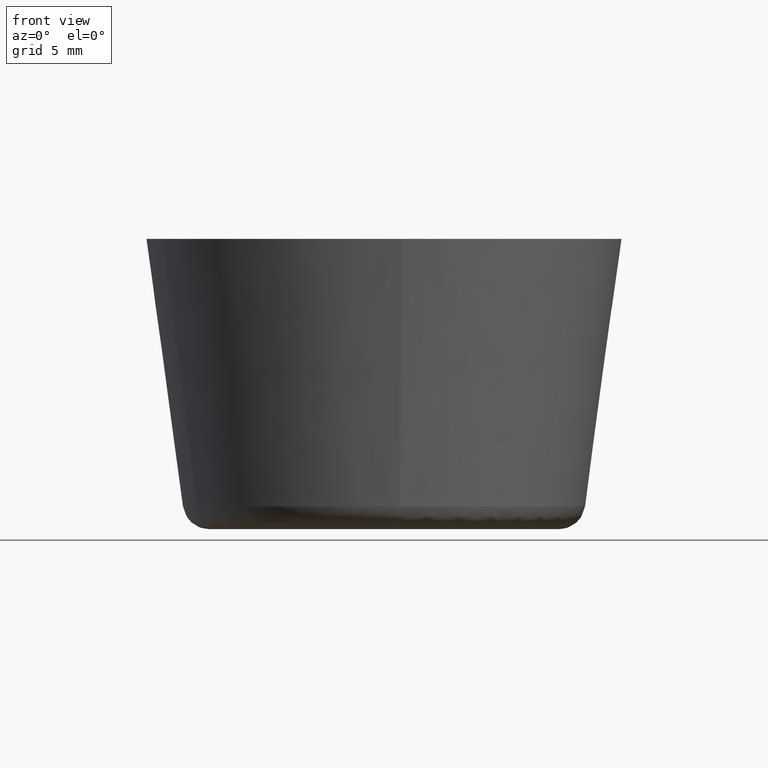
[diagram: clean part render]
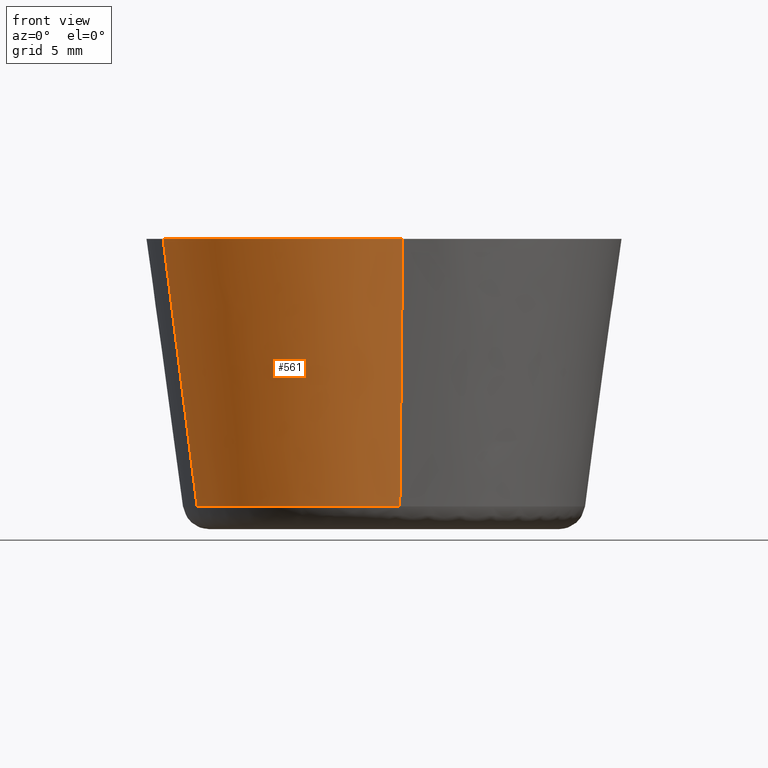
[diagram: same view with one face highlighted and labeled with its STEP entity id]
A machine part, front view. The second image highlights one B-rep face of the part: STEP entity #561.
In plain terms, the highlighted face is a freeform B-spline surface patch.
Its self-contained STEP definition (entity closure, byte-faithful):
#497=CARTESIAN_POINT('',(-14.103044386516341,-5.579892592433053,1.223017307398109));
#498=CARTESIAN_POINT('',(-9.980641361108283,-15.999167136405694,1.223017307398109));
#499=CARTESIAN_POINT('',(1.189971447496419,-15.120020842091551,1.223017307398109));
#500=CARTESIAN_POINT('',(-16.803422435196168,-6.648301586806173,22.519424567315038));
#501=CARTESIAN_POINT('',(-11.891682984791359,-19.062604969276439,22.519424567315042));
#502=CARTESIAN_POINT('',(1.417821029991340,-18.015124286323910,22.519424567315049));
#510=(BOUNDED_SURFACE()B_SPLINE_SURFACE(2,1,((#497,#500),(#498,#501),(#499,#502)),.UNSPECIFIED.,.F.,.F.,.U.)B_SPLINE_SURFACE_WITH_KNOTS((3,3),(2,2),(0.0,23.789321917577521),(0.0,21.493499053557841),.UNSPECIFIED.)GEOMETRIC_REPRESENTATION_ITEM()RATIONAL_B_SPLINE_SURFACE(((0.906274169979695,0.906274169979695),(0.765685424949238,0.765685424949238),(1.0,1.0)))REPRESENTATION_ITEM('')SURFACE());
#511=CARTESIAN_POINT('',(1.195385475668966,-15.188911103896380,1.729770238831320));
#512=VERTEX_POINT('',#511);
#513=CARTESIAN_POINT('',(-14.167302650920259,-5.605309753979007,1.729769007445406));
#514=VERTEX_POINT('',#513);
#515=CARTESIAN_POINT('',(1.195385475668966,-15.188911103896384,1.729770238831321));
#516=CARTESIAN_POINT('',(0.598615391157902,-15.235877629290734,1.729770206088202));
#517=CARTESIAN_POINT('',(-2.654968E-010,-15.235877634201231,1.729770171548069));
#518=CARTESIAN_POINT('',(-10.356957460946093,-15.235877719160307,1.729769573951176));
#519=CARTESIAN_POINT('',(-14.167302650920261,-5.605309753979007,1.729769007445405));
#527=(BOUNDED_CURVE()B_SPLINE_CURVE(2,(#515,#516,#517,#518,#519),.UNSPECIFIED.,.F.,.U.)B_SPLINE_CURVE_WITH_KNOTS((3,2,3),(0.736331387595906,0.750000000000000,0.937532614537402),.UNSPECIFIED.)CURVE()GEOMETRIC_REPRESENTATION_ITEM()RATIONAL_B_SPLINE_CURVE((0.969723537657323,0.983986224465006,1.0,0.780291875582551,0.890203263222006))REPRESENTATION_ITEM(''));
#528=EDGE_CURVE('',#512,#514,#527,.T.);
#529=ORIENTED_EDGE('',*,*,#528,.F.);
#530=CARTESIAN_POINT('',(1.412253363233382,-17.944512308442039,21.999996241646208));
#531=VERTEX_POINT('',#530);
#532=CARTESIAN_POINT('',(1.195385475668966,-15.188911103896380,1.729770238831320));
#533=CARTESIAN_POINT('',(1.412253363233382,-17.944512308442039,21.999996241646208));
#534=QUASI_UNIFORM_CURVE('',1,(#532,#533),.UNSPECIFIED.,.F.,.U.);
#535=EDGE_CURVE('',#512,#531,#534,.T.);
#536=ORIENTED_EDGE('',*,*,#535,.T.);
#537=CARTESIAN_POINT('',(-16.737561374398702,-6.622236711221320,21.999995889514299));
#538=VERTEX_POINT('',#537);
#539=CARTESIAN_POINT('',(1.412253363233382,-17.944512308442039,21.999996241646215));
#540=CARTESIAN_POINT('',(0.707216717082357,-17.999999497176415,21.999996232282871));
#541=CARTESIAN_POINT('',(-9.534341E-009,-17.999999505723419,21.999996222405649));
#542=CARTESIAN_POINT('',(-12.235935697368136,-17.999999653599907,21.999996051514511));
#543=CARTESIAN_POINT('',(-16.737561374398698,-6.622236711221321,21.999995889514295));
#551=(BOUNDED_CURVE()B_SPLINE_CURVE(2,(#539,#540,#541,#542,#543),.UNSPECIFIED.,.F.,.U.)B_SPLINE_CURVE_WITH_KNOTS((3,2,3),(0.736331399216788,0.750000000000000,0.937532605537543),.UNSPECIFIED.)CURVE()GEOMETRIC_REPRESENTATION_ITEM()RATIONAL_B_SPLINE_CURVE((0.969723561909238,0.983986238079716,1.0,0.780291886126542,0.890203252672514))REPRESENTATION_ITEM(''));
#552=EDGE_CURVE('',#531,#538,#551,.T.);
#553=ORIENTED_EDGE('',*,*,#552,.T.);
#554=CARTESIAN_POINT('',(-14.167302650920259,-5.605309753979007,1.729769007445406));
#555=CARTESIAN_POINT('',(-16.737561374398702,-6.622236711221320,21.999995889514299));
#556=QUASI_UNIFORM_CURVE('',1,(#554,#555),.UNSPECIFIED.,.F.,.U.);
#557=EDGE_CURVE('',#514,#538,#556,.T.);
#558=ORIENTED_EDGE('',*,*,#557,.F.);
#559=EDGE_LOOP('',(#529,#536,#553,#558));
#560=FACE_OUTER_BOUND('',#559,.T.);
#561=ADVANCED_FACE('',(#560),#510,.T.);